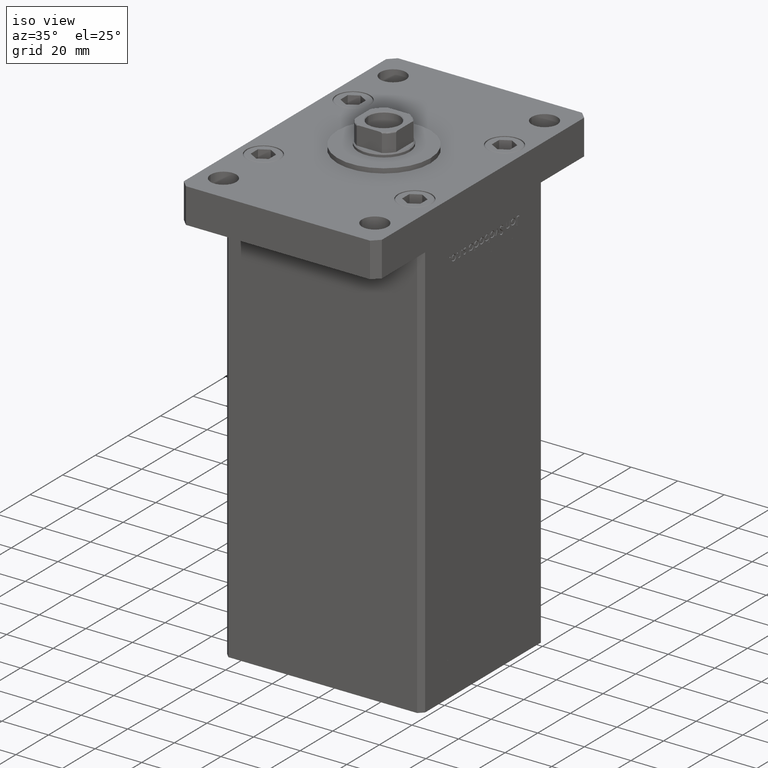
[diagram: clean part render]
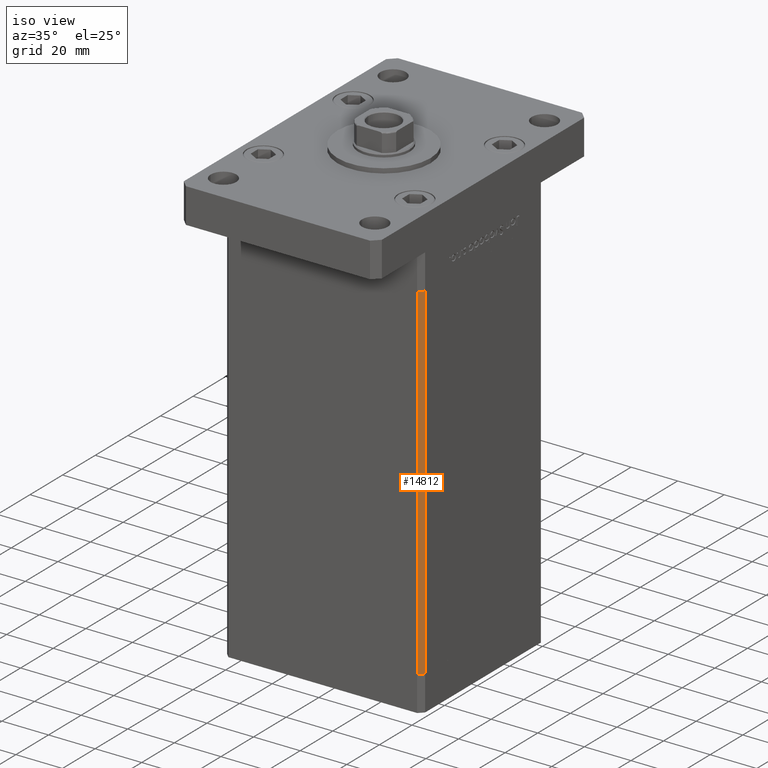
[diagram: same view with one face highlighted and labeled with its STEP entity id]
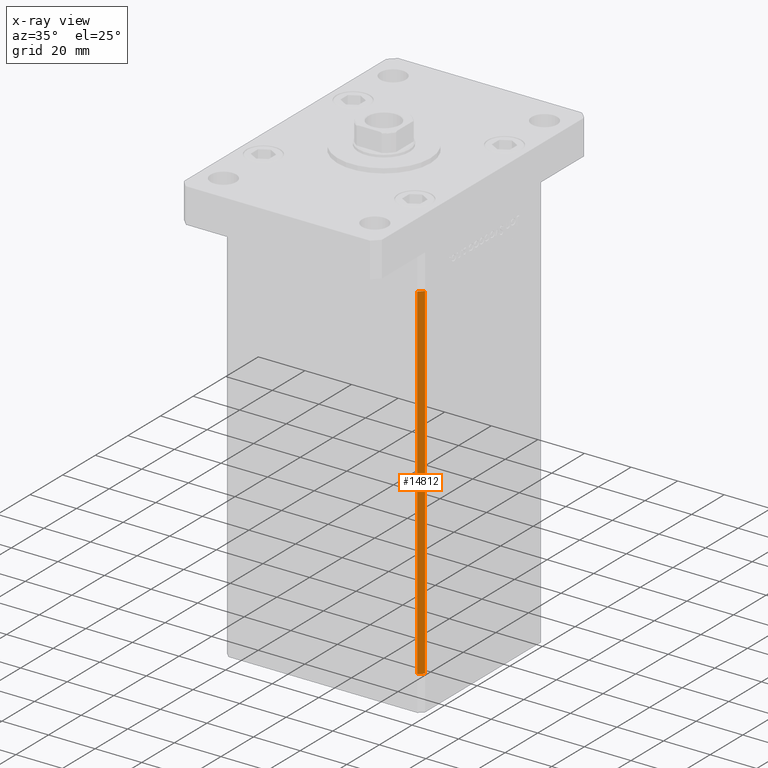
[diagram: x-ray of the same camera — body ghosted, the highlighted face saturated]
A machine part, iso view. The second image highlights one B-rep face of the part: STEP entity #14812.
The next image is the same camera in x-ray: the body ghosted, the highlighted face saturated — about 0% of this face is hidden behind the body in this view.
In plain terms, the highlighted planar face has unit normal (0.7071, -0.7071, 0).
Its self-contained STEP definition (entity closure, byte-faithful):
#963 = VERTEX_POINT ( 'NONE', #49597 ) ;
#2013 = EDGE_CURVE ( 'NONE', #32584, #963, #39296, .T. ) ;
#2141 = CARTESIAN_POINT ( 'NONE',  ( 42.49999999999998579, -35.50000000000000711, 0.000000000000000000 ) ) ;
#3097 = LINE ( 'NONE', #32348, #30744 ) ;
#3454 = DIRECTION ( 'NONE',  ( 0.7071067811865475727, -0.7071067811865475727, 0.000000000000000000 ) ) ;
#4153 = LINE ( 'NONE', #37216, #51609 ) ;
#7784 = FACE_OUTER_BOUND ( 'NONE', #37764, .T. ) ;
#10961 = DIRECTION ( 'NONE',  ( -0.000000000000000000, -0.000000000000000000, -1.000000000000000000 ) ) ;
#13100 = VERTEX_POINT ( 'NONE', #38566 ) ;
#14812 = ADVANCED_FACE ( 'NONE', ( #7784 ), #24049, .T. ) ;
#16831 = EDGE_CURVE ( 'NONE', #13100, #32584, #3097, .T. ) ;
#19818 = VERTEX_POINT ( 'NONE', #40243 ) ;
#20320 = AXIS2_PLACEMENT_3D ( 'NONE', #28109, #3454, #36521 ) ;
#22145 = ORIENTED_EDGE ( 'NONE', *, *, #2013, .F. ) ;
#24049 = PLANE ( 'NONE',  #20320 ) ;
#24260 = EDGE_CURVE ( 'NONE', #19818, #963, #4153, .T. ) ;
#25040 = ORIENTED_EDGE ( 'NONE', *, *, #29552, .T. ) ;
#25129 = CARTESIAN_POINT ( 'NONE',  ( 42.49999999999998579, -35.50000000000000711, 148.5000000000000000 ) ) ;
#28109 = CARTESIAN_POINT ( 'NONE',  ( 42.49999999999998579, -35.50000000000000711, 148.5000000000000000 ) ) ;
#28545 = DIRECTION ( 'NONE',  ( -0.000000000000000000, -0.000000000000000000, -1.000000000000000000 ) ) ;
#29552 = EDGE_CURVE ( 'NONE', #13100, #19818, #45742, .T. ) ;
#30744 = VECTOR ( 'NONE', #10961, 1000.000000000000000 ) ;
#31681 = DIRECTION ( 'NONE',  ( -0.7071067811865474617, -0.7071067811865474617, 0.000000000000000000 ) ) ;
#32348 = CARTESIAN_POINT ( 'NONE',  ( 42.49999999999998579, -35.50000000000000711, 148.5000000000000000 ) ) ;
#32584 = VERTEX_POINT ( 'NONE', #45916 ) ;
#36521 = DIRECTION ( 'NONE',  ( 0.7071067811865474617, 0.7071067811865474617, 0.000000000000000000 ) ) ;
#37216 = CARTESIAN_POINT ( 'NONE',  ( 40.49999999999998579, -37.50000000000000711, 148.5000000000000000 ) ) ;
#37764 = EDGE_LOOP ( 'NONE', ( #22145, #46263, #25040, #38302 ) ) ;
#38302 = ORIENTED_EDGE ( 'NONE', *, *, #24260, .T. ) ;
#38566 = CARTESIAN_POINT ( 'NONE',  ( 42.49999999999998579, -35.50000000000000711, 148.5000000000000000 ) ) ;
#39296 = LINE ( 'NONE', #2141, #44299 ) ;
#40243 = CARTESIAN_POINT ( 'NONE',  ( 40.49999999999998579, -37.50000000000000711, 148.5000000000000000 ) ) ;
#40941 = VECTOR ( 'NONE', #41676, 1000.000000000000114 ) ;
#41676 = DIRECTION ( 'NONE',  ( -0.7071067811865474617, -0.7071067811865474617, 0.000000000000000000 ) ) ;
#44299 = VECTOR ( 'NONE', #31681, 1000.000000000000114 ) ;
#45742 = LINE ( 'NONE', #25129, #40941 ) ;
#45916 = CARTESIAN_POINT ( 'NONE',  ( 42.49999999999998579, -35.50000000000000711, 0.000000000000000000 ) ) ;
#46263 = ORIENTED_EDGE ( 'NONE', *, *, #16831, .F. ) ;
#49597 = CARTESIAN_POINT ( 'NONE',  ( 40.49999999999998579, -37.50000000000000711, 0.000000000000000000 ) ) ;
#51609 = VECTOR ( 'NONE', #28545, 1000.000000000000000 ) ;